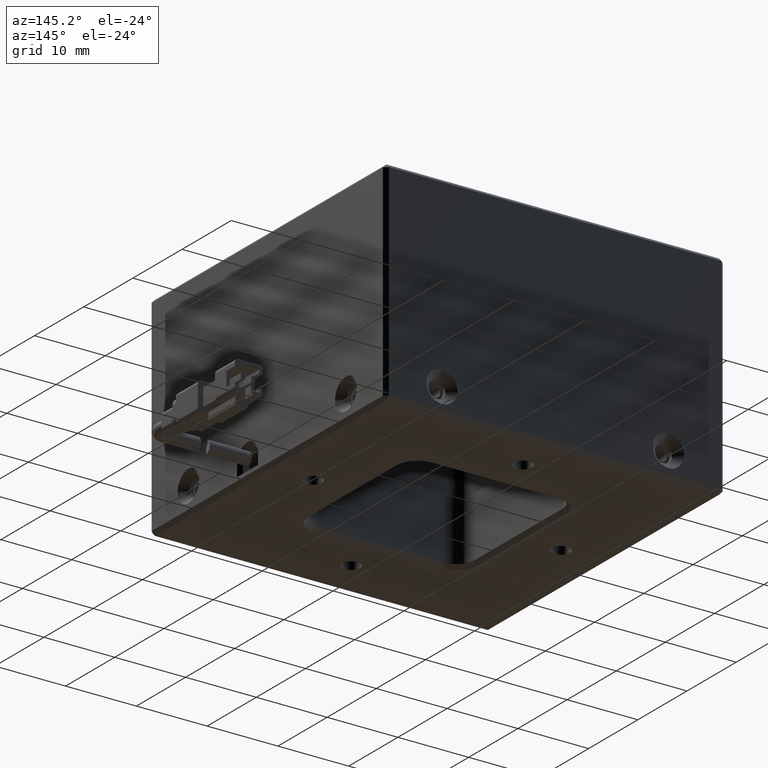
[diagram: clean part render]
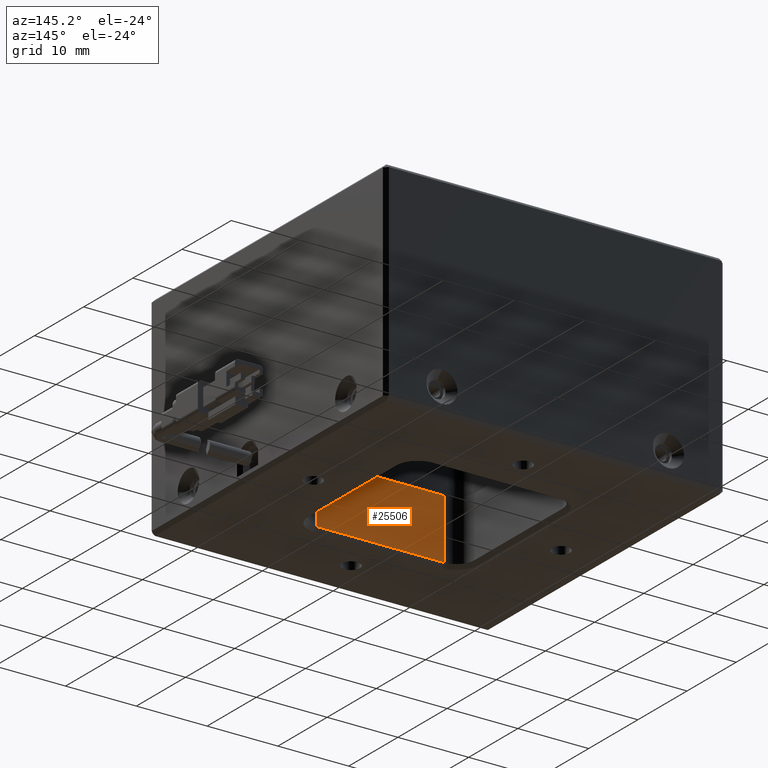
[diagram: same view with one face highlighted and labeled with its STEP entity id]
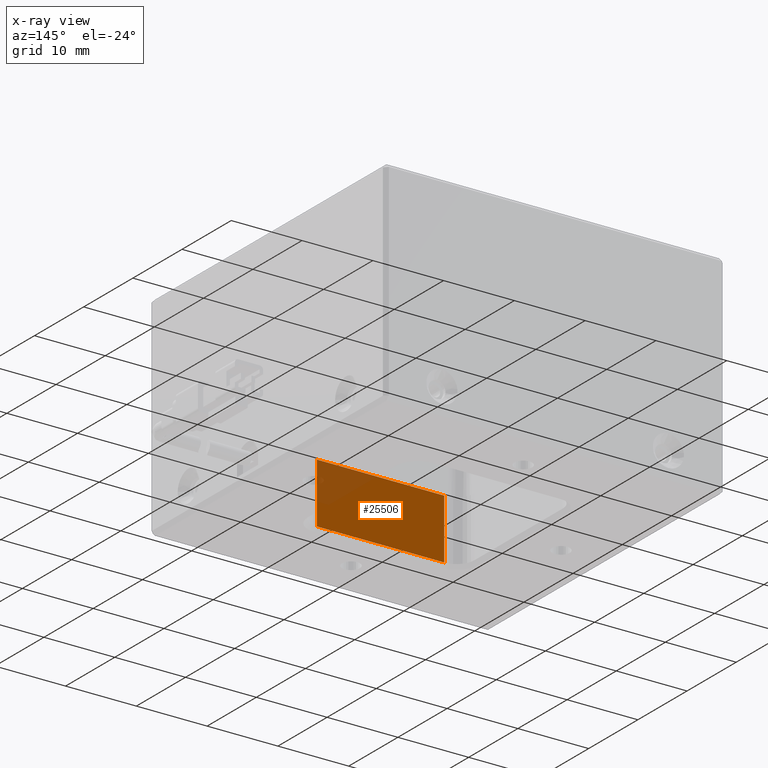
[diagram: x-ray of the same camera — body ghosted, the highlighted face saturated]
A machine part, auxiliary view. The second image highlights one B-rep face of the part: STEP entity #25506.
The next image is the same camera in x-ray: the body ghosted, the highlighted face saturated — about 18% of this face is hidden behind the body in this view.
In plain terms, the highlighted planar face has unit normal (0, -1, 0).
Its self-contained STEP definition (entity closure, byte-faithful):
#591 = CARTESIAN_POINT ( 'NONE',  ( -28.81427458548067100, -10.09390667123334300, 0.5000000000623620000 ) ) ;
#4695 = ORIENTED_EDGE ( 'NONE', *, *, #15213, .F. ) ;
#4735 = DIRECTION ( 'NONE',  ( -1.000000000000000000, -0.0000000000000000000, -0.0000000000000000000 ) ) ;
#5862 = DIRECTION ( 'NONE',  ( 0.0000000000000000000, -1.000000000000000000, 0.0000000000000000000 ) ) ;
#6360 = DIRECTION ( 'NONE',  ( -0.0000000000000000000, -0.0000000000000000000, 1.000000000000000000 ) ) ;
#6421 = ORIENTED_EDGE ( 'NONE', *, *, #12402, .T. ) ;
#6709 = EDGE_LOOP ( 'NONE', ( #8911, #6421, #4695, #8772 ) ) ;
#8772 = ORIENTED_EDGE ( 'NONE', *, *, #9383, .T. ) ;
#8904 = FACE_OUTER_BOUND ( 'NONE', #6709, .T. ) ;
#8911 = ORIENTED_EDGE ( 'NONE', *, *, #24629, .T. ) ;
#9383 = EDGE_CURVE ( 'NONE', #21301, #20857, #16903, .T. ) ;
#12118 = DIRECTION ( 'NONE',  ( -1.000000000000000000, -0.0000000000000000000, -0.0000000000000000000 ) ) ;
#12402 = EDGE_CURVE ( 'NONE', #17162, #15945, #26278, .T. ) ;
#13206 = AXIS2_PLACEMENT_3D ( 'NONE', #19493, #5862, #21780 ) ;
#15213 = EDGE_CURVE ( 'NONE', #21301, #15945, #22999, .T. ) ;
#15945 = VERTEX_POINT ( 'NONE', #25404 ) ;
#16057 = CARTESIAN_POINT ( 'NONE',  ( -31.31427458548067500, -10.09390667125562800, 9.000000000007279500 ) ) ;
#16903 = LINE ( 'NONE', #25891, #28286 ) ;
#17122 = PLANE ( 'NONE',  #13206 ) ;
#17162 = VERTEX_POINT ( 'NONE', #591 ) ;
#17653 = VECTOR ( 'NONE', #4735, 1000.000000000000000 ) ;
#17703 = CARTESIAN_POINT ( 'NONE',  ( -28.81427458548067100, -10.09390667125562800, -18.99999999999272400 ) ) ;
#18332 = CARTESIAN_POINT ( 'NONE',  ( -10.81427458548066600, -10.09390667125562800, 9.000000000007279500 ) ) ;
#19493 = CARTESIAN_POINT ( 'NONE',  ( -31.31427458548067500, -10.09390667125562800, -18.99999999999272400 ) ) ;
#20267 = VECTOR ( 'NONE', #6360, 1000.000000000000000 ) ;
#20857 = VERTEX_POINT ( 'NONE', #23160 ) ;
#21301 = VERTEX_POINT ( 'NONE', #18332 ) ;
#21780 = DIRECTION ( 'NONE',  ( 0.0000000000000000000, -0.0000000000000000000, -1.000000000000000000 ) ) ;
#22999 = LINE ( 'NONE', #16057, #17653 ) ;
#23160 = CARTESIAN_POINT ( 'NONE',  ( -10.81427458548066100, -10.09390667124027800, 0.5000000000440069100 ) ) ;
#23629 = DIRECTION ( 'NONE',  ( 0.0000000000000000000, 0.0000000000000000000, -1.000000000000000000 ) ) ;
#24629 = EDGE_CURVE ( 'NONE', #20857, #17162, #26791, .T. ) ;
#25404 = CARTESIAN_POINT ( 'NONE',  ( -28.81427458548067100, -10.09390667125562800, 9.000000000007279500 ) ) ;
#25506 = ADVANCED_FACE ( 'NONE', ( #8904 ), #17122, .F. ) ;
#25820 = CARTESIAN_POINT ( 'NONE',  ( -43.81427458548066800, -10.09390667125562800, 0.5000000000072968300 ) ) ;
#25891 = CARTESIAN_POINT ( 'NONE',  ( -10.81427458548066400, -10.09390667125562400, -18.99999999999272400 ) ) ;
#26074 = VECTOR ( 'NONE', #12118, 1000.000000000000000 ) ;
#26278 = LINE ( 'NONE', #17703, #20267 ) ;
#26791 = LINE ( 'NONE', #25820, #26074 ) ;
#28286 = VECTOR ( 'NONE', #23629, 1000.000000000000000 ) ;